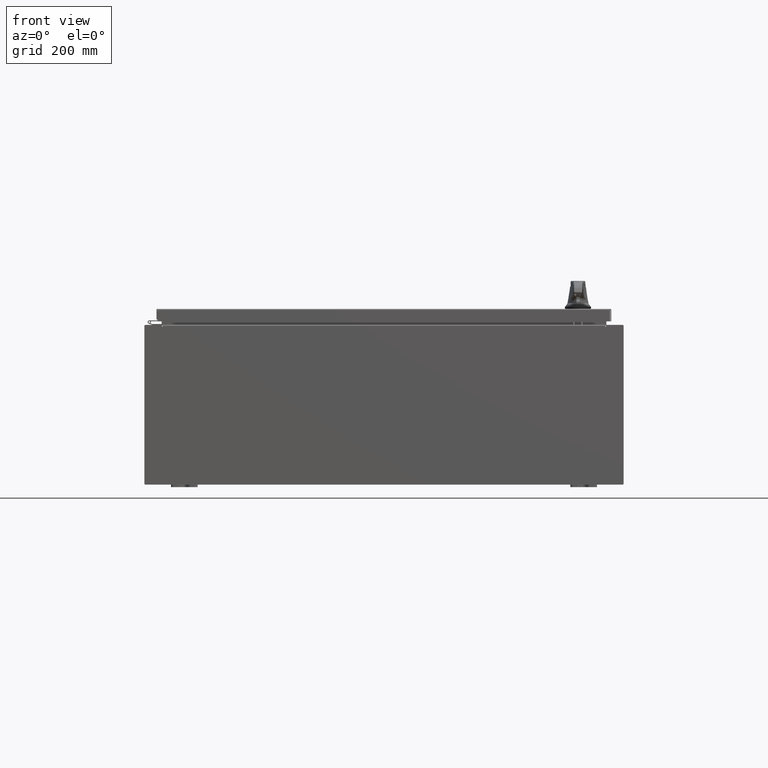
[diagram: clean part render]
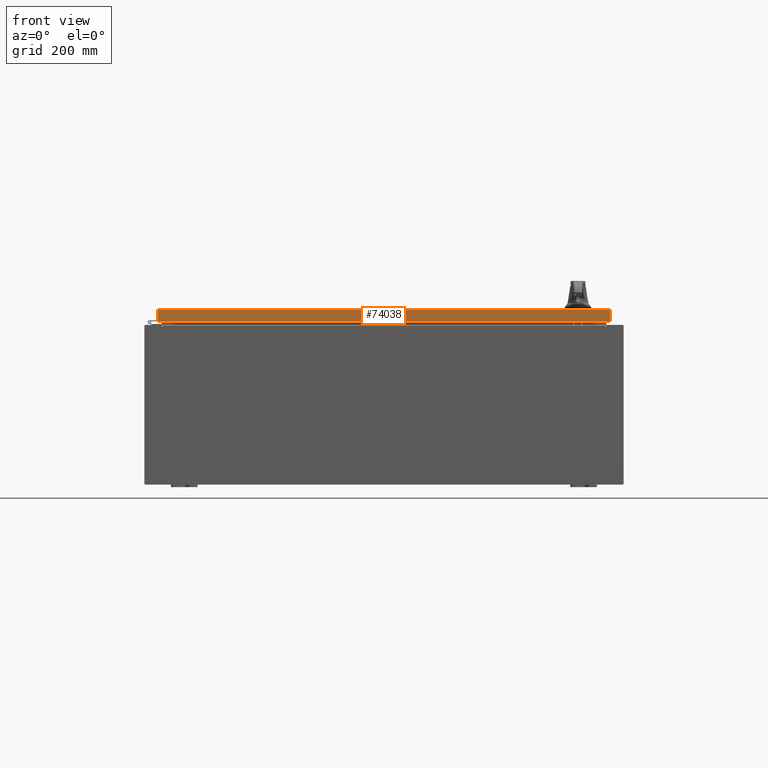
[diagram: same view with one face highlighted and labeled with its STEP entity id]
A machine part, front view. The second image highlights one B-rep face of the part: STEP entity #74038.
In plain terms, the highlighted planar face has unit normal (-0, 1, -0).
Its self-contained STEP definition (entity closure, byte-faithful):
#1194 = EDGE_CURVE ( 'NONE', #10640, #94697, #64786, .T. ) ;
#3267 = DIRECTION ( 'NONE',  ( 0.0000000000000000000, 2.532419924601866100E-015, 1.000000000000000000 ) ) ;
#3625 = CARTESIAN_POINT ( 'NONE',  ( 16.98915786437627100, -17.09400000000000100, -0.9376999999999997600 ) ) ;
#10640 = VERTEX_POINT ( 'NONE', #94512 ) ;
#11855 = EDGE_CURVE ( 'NONE', #94697, #26899, #43124, .T. ) ;
#14640 = DIRECTION ( 'NONE',  ( -1.000000000000000000, 4.379057701015054300E-047, 1.279703943630056800E-016 ) ) ;
#14651 = CARTESIAN_POINT ( 'NONE',  ( 16.98915786437627100, -17.09399999999999800, -0.07469999999999980800 ) ) ;
#14659 = CARTESIAN_POINT ( 'NONE',  ( 16.98915786437626700, -17.09399999999999800, -0.08770000000000008300 ) ) ;
#20540 = EDGE_LOOP ( 'NONE', ( #76051, #45471, #62081, #71472 ) ) ;
#22048 = CARTESIAN_POINT ( 'NONE',  ( 5.539734228534313800E-030, -17.09399999999999800, 4.354999984715587200E-014 ) ) ;
#26037 = LINE ( 'NONE', #94505, #96336 ) ;
#26899 = VERTEX_POINT ( 'NONE', #3625 ) ;
#27607 = DIRECTION ( 'NONE',  ( 0.0000000000000000000, -2.532419924601866100E-015, -1.000000000000000000 ) ) ;
#28713 = DIRECTION ( 'NONE',  ( 1.000000000000000000, 3.240747764440338900E-031, -8.113934696013458900E-046 ) ) ;
#43124 = LINE ( 'NONE', #14651, #87997 ) ;
#45471 = ORIENTED_EDGE ( 'NONE', *, *, #69251, .T. ) ;
#47071 = VECTOR ( 'NONE', #14640, 39.37007874015748100 ) ;
#60580 = DIRECTION ( 'NONE',  ( -3.240747764440338400E-031, 1.000000000000000000, -2.532419924601866100E-015 ) ) ;
#61727 = CARTESIAN_POINT ( 'NONE',  ( 17.07799999999999900, -17.09399999999999800, -0.08770000000000008300 ) ) ;
#62081 = ORIENTED_EDGE ( 'NONE', *, *, #117832, .F. ) ;
#64786 = LINE ( 'NONE', #61727, #67771 ) ;
#67771 = VECTOR ( 'NONE', #28713, 39.37007874015748100 ) ;
#69251 = EDGE_CURVE ( 'NONE', #10640, #98979, #26037, .T. ) ;
#71472 = ORIENTED_EDGE ( 'NONE', *, *, #11855, .F. ) ;
#71970 = CARTESIAN_POINT ( 'NONE',  ( 17.07799999999999900, -17.09400000000000100, -0.9376999999999997600 ) ) ;
#71982 = DIRECTION ( 'NONE',  ( -0.0000000000000000000, -2.532419924601866100E-015, -1.000000000000000000 ) ) ;
#74038 = ADVANCED_FACE ( 'NONE', ( #92918 ), #98582, .F. ) ;
#76051 = ORIENTED_EDGE ( 'NONE', *, *, #1194, .F. ) ;
#76783 = CARTESIAN_POINT ( 'NONE',  ( -16.98915786437626700, -17.09400000000000100, -0.9376999999999954300 ) ) ;
#87997 = VECTOR ( 'NONE', #71982, 39.37007874015748100 ) ;
#92918 = FACE_OUTER_BOUND ( 'NONE', #20540, .T. ) ;
#94505 = CARTESIAN_POINT ( 'NONE',  ( -16.98915786437627100, -17.09399999999999800, 4.354999984715587200E-014 ) ) ;
#94512 = CARTESIAN_POINT ( 'NONE',  ( -16.98915786437626700, -17.09399999999999800, -0.08770000000000008300 ) ) ;
#94697 = VERTEX_POINT ( 'NONE', #14659 ) ;
#96336 = VECTOR ( 'NONE', #27607, 39.37007874015748100 ) ;
#98582 = PLANE ( 'NONE',  #102582 ) ;
#98979 = VERTEX_POINT ( 'NONE', #76783 ) ;
#100917 = LINE ( 'NONE', #71970, #47071 ) ;
#102582 = AXIS2_PLACEMENT_3D ( 'NONE', #22048, #60580, #3267 ) ;
#117832 = EDGE_CURVE ( 'NONE', #26899, #98979, #100917, .T. ) ;